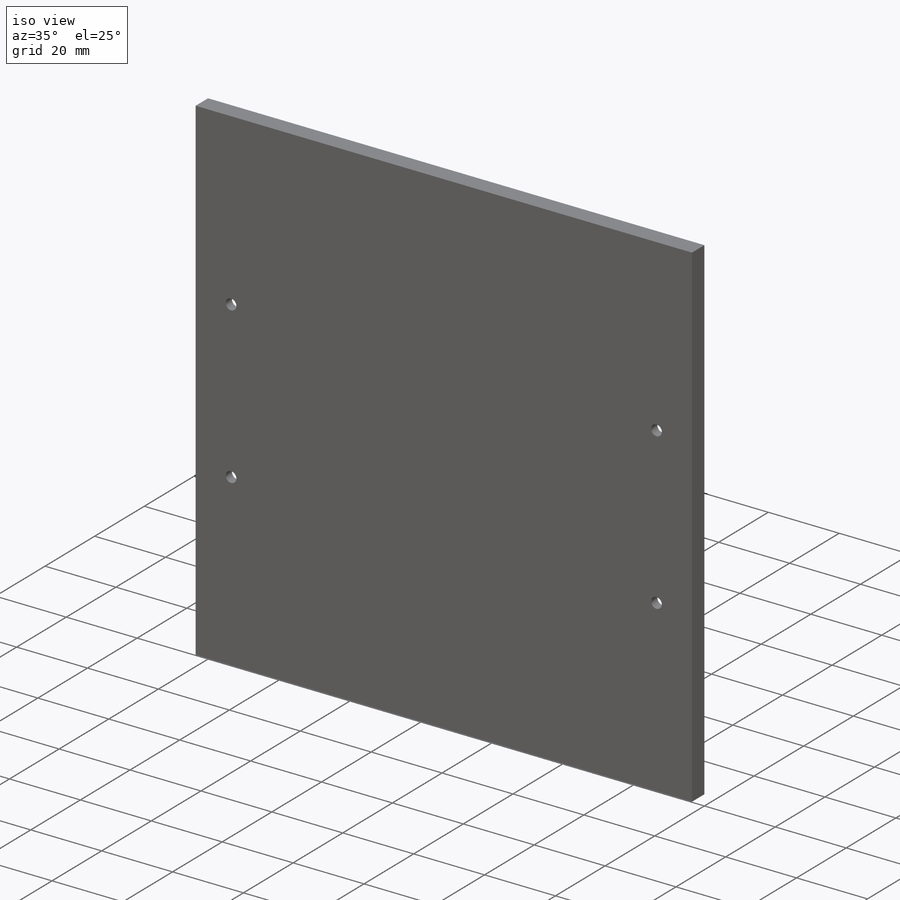
[diagram: iso view]
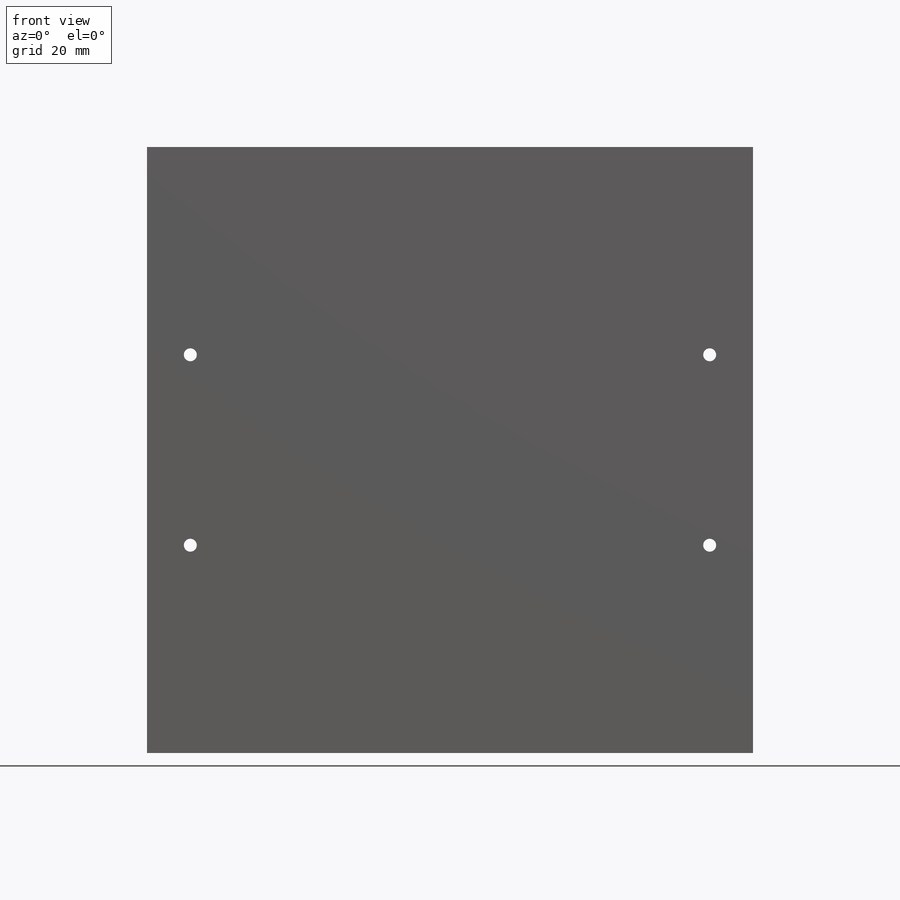
[diagram: front view]
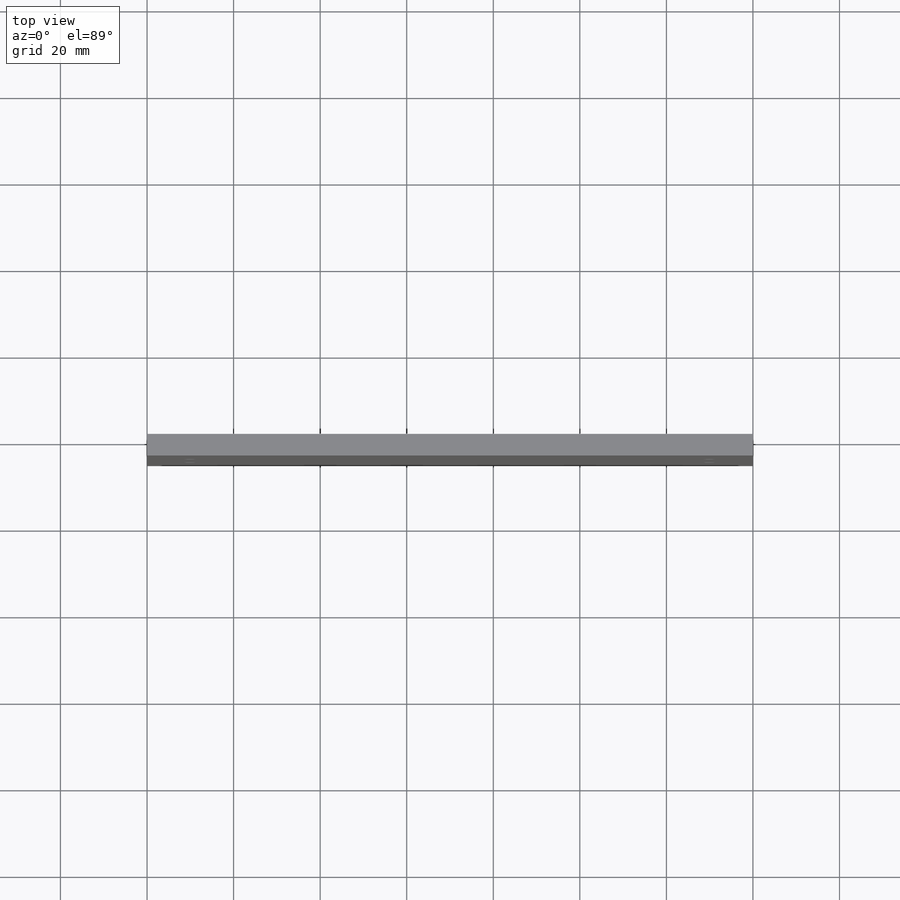
[diagram: top view]
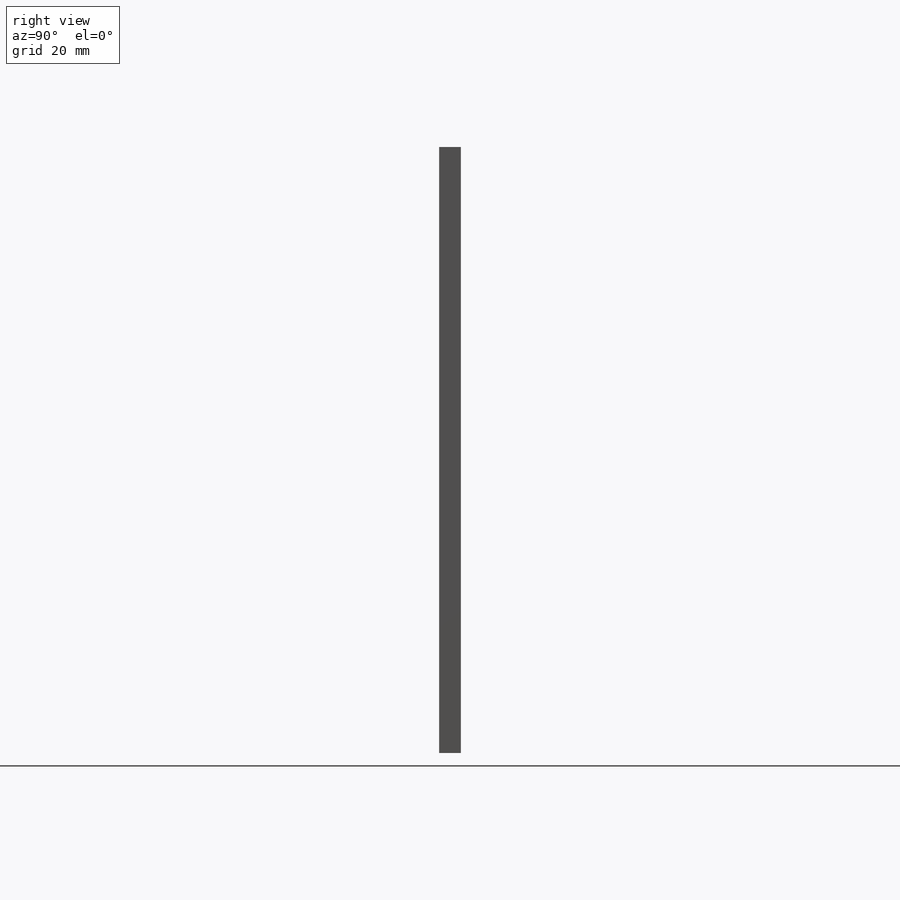
[diagram: right view]
SOLIDWORKS PART (.sldprt)
format: sldprt  version: not decoded by parser v0  size: 186,880 bytes
history: native  units: mm
features: sketch x4, material x1, extrude x1, hole x1, cut_extrude x1 (+16 scaffold rows collapsed)
feature tree (24):
  scaffold x16  (default folders/planes/origin — collapsed)
  material  "Ceramic Porcelain"
  sketch  "Sketch1"  dims[D2=10.0mm D3=10.0mm D4=10.0mm D1=140.0mm D5=140.0mm]
  extrude  "Boss-Extrude1"  Depth=5mm
  hole  "CSK for M3 Flat Head Machine Screw1"  Diameter=3mm Depth=5mm
  sketch  "Sketch6"  dims[c1.D1=10.0mm c1.D2=10.0mm c1.D3=22.0mm c1.D4=44.0mm c2.D2=10.0mm c2.D1=60.0mm]
  sketch  "Sketch5"  dims[hole-wizard template sketch: 55 standard entries collapsed; hole parameters kept: c17.Thru Hole Depth=5.0mm c17.Near C'Sink Dia.=8.0mm c17.D4=~3.666174mm c17.Near C'Sink Angle=90.0deg]
  sketch  "Sketch7"  dims[c1.D2=3.0mm c1.D3=3.0mm c1.D1=8.2mm c2.D3=8.2mm c2.D4=8.0mm]
  cut_extrude  "Cut-Extrude1"  [1 undecoded]
decode coverage: 6 of 7 modeling features carry decoded parameters
note: ~ marks probable driven/reference dimensions
note: 1 parameter value undecoded
note: suppression state not decoded; provenance and decode notes live in map.json
